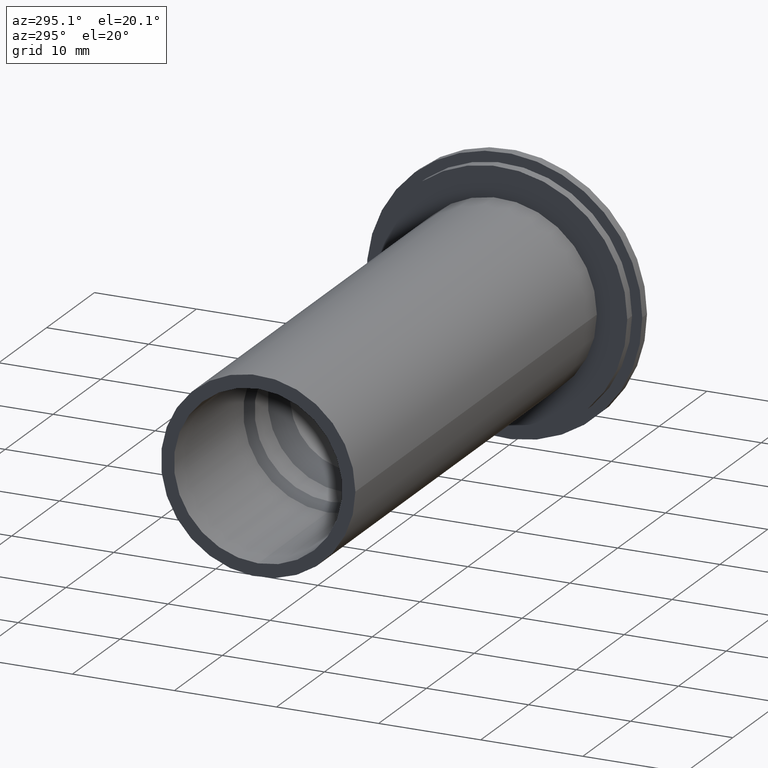
[diagram: clean part render]
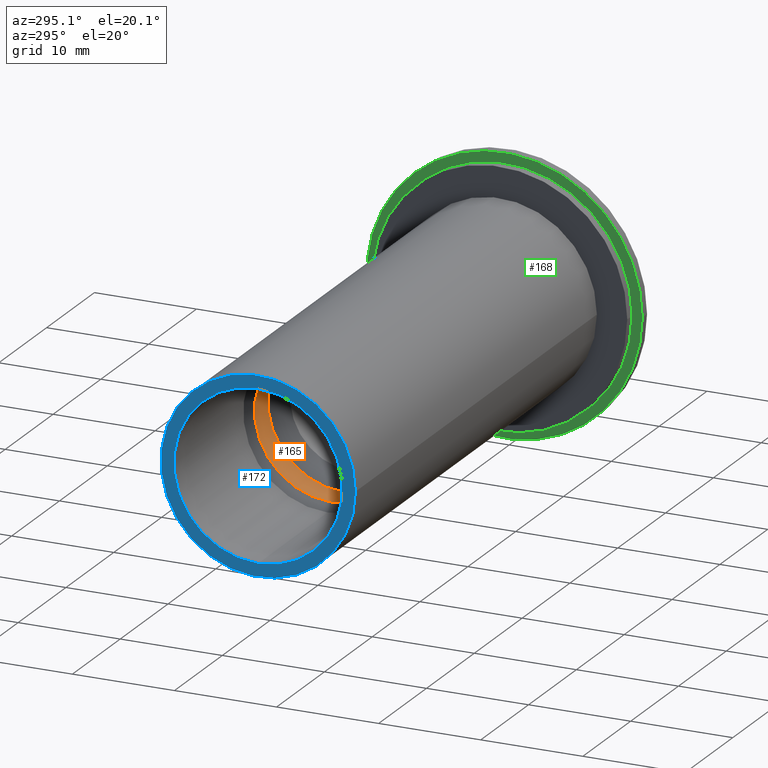
[diagram: same view with three faces highlighted in distinct colors, each labeled with its STEP entity id]
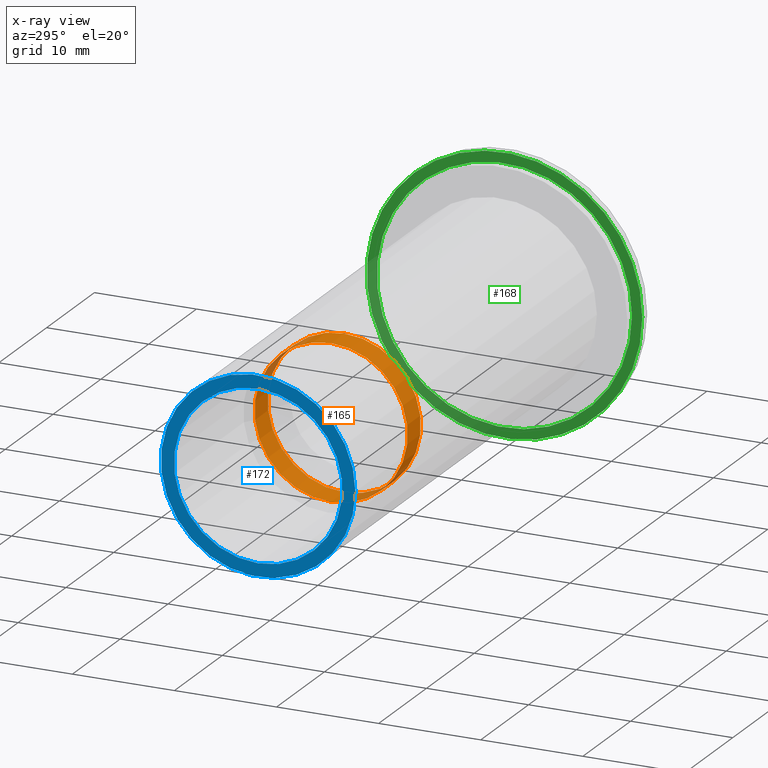
[diagram: x-ray of the same camera — body ghosted, the three highlighted faces saturated]
A machine part, auxiliary view with three faces highlighted in distinct colors.
The next image is the same camera in x-ray (body ghosted, the three faces saturated) — at least one of them is partly hidden behind the body in this view.
Their STEP definitions:

[orange] entity #165 — the highlighted cylindrical surface (bore or boss wall) has radius 7.5 mm, axis along (-1, 0, 0).
#23=CYLINDRICAL_SURFACE('',#203,7.5);
#30=FACE_OUTER_BOUND('',#42,.T.);
#42=EDGE_LOOP('',(#125,#126,#127,#128));
#58=LINE('',#296,#66);
#66=VECTOR('',#239,7.5);
#73=CIRCLE('',#200,7.5);
#76=CIRCLE('',#204,7.5);
#86=VERTEX_POINT('',#286);
#89=VERTEX_POINT('',#294);
#99=EDGE_CURVE('',#86,#86,#73,.T.);
#103=EDGE_CURVE('',#89,#89,#76,.T.);
#104=EDGE_CURVE('',#89,#86,#58,.T.);
#125=ORIENTED_EDGE('',*,*,#103,.F.);
#126=ORIENTED_EDGE('',*,*,#104,.T.);
#127=ORIENTED_EDGE('',*,*,#99,.F.);
#128=ORIENTED_EDGE('',*,*,#104,.F.);
#165=ADVANCED_FACE('',(#30),#23,.F.);
#200=AXIS2_PLACEMENT_3D('',#287,#228,#229);
#203=AXIS2_PLACEMENT_3D('',#293,#235,#236);
#204=AXIS2_PLACEMENT_3D('',#295,#237,#238);
#228=DIRECTION('center_axis',(-1.,0.,0.));
#229=DIRECTION('ref_axis',(0.,0.,1.));
#235=DIRECTION('center_axis',(-1.,0.,0.));
#236=DIRECTION('ref_axis',(0.,0.,1.));
#237=DIRECTION('center_axis',(1.,0.,0.));
#238=DIRECTION('ref_axis',(0.,0.,1.));
#239=DIRECTION('',(1.,0.,0.));
#286=CARTESIAN_POINT('',(-34.5,-9.18485099360515E-16,-7.5));
#287=CARTESIAN_POINT('Origin',(-34.5,0.,0.));
#293=CARTESIAN_POINT('Origin',(-43.5,0.,0.));
#294=CARTESIAN_POINT('',(-37.25,9.18485099360515E-16,-7.5));
#295=CARTESIAN_POINT('Origin',(-37.25,0.,0.));
#296=CARTESIAN_POINT('',(-43.5,-9.18485099360515E-16,-7.5));

[blue] entity #172 — the highlighted planar face has unit normal (-1, 0, 0).
#17=FACE_BOUND('',#52,.T.);
#21=PLANE('',#217);
#37=FACE_OUTER_BOUND('',#51,.T.);
#51=EDGE_LOOP('',(#150));
#52=EDGE_LOOP('',(#151));
#78=CIRCLE('',#208,8.25);
#83=CIRCLE('',#218,9.525);
#91=VERTEX_POINT('',#302);
#96=VERTEX_POINT('',#320);
#107=EDGE_CURVE('',#91,#91,#78,.T.);
#115=EDGE_CURVE('',#96,#96,#83,.T.);
#150=ORIENTED_EDGE('',*,*,#115,.F.);
#151=ORIENTED_EDGE('',*,*,#107,.T.);
#172=ADVANCED_FACE('',(#37,#17),#21,.T.);
#208=AXIS2_PLACEMENT_3D('',#303,#247,#248);
#217=AXIS2_PLACEMENT_3D('',#319,#268,#269);
#218=AXIS2_PLACEMENT_3D('',#321,#270,#271);
#247=DIRECTION('center_axis',(1.,0.,0.));
#248=DIRECTION('ref_axis',(0.,0.,1.));
#268=DIRECTION('center_axis',(-1.,0.,0.));
#269=DIRECTION('ref_axis',(0.,0.,1.));
#270=DIRECTION('center_axis',(1.,0.,0.));
#271=DIRECTION('ref_axis',(0.,0.,-1.));
#302=CARTESIAN_POINT('',(-52.5,-1.01033360929657E-15,-8.25));
#303=CARTESIAN_POINT('Origin',(-52.5,0.,0.));
#319=CARTESIAN_POINT('Origin',(-52.5,9.525,0.));
#320=CARTESIAN_POINT('',(-52.5,-9.525,-1.16647607618785E-15));
#321=CARTESIAN_POINT('Origin',(-52.5,0.,0.));

[green] entity #168 — the highlighted planar face has unit normal (-1, 0, 0).
#15=FACE_BOUND('',#46,.T.);
#19=PLANE('',#209);
#33=FACE_OUTER_BOUND('',#45,.T.);
#45=EDGE_LOOP('',(#137));
#46=EDGE_LOOP('',(#138));
#79=CIRCLE('',#210,13.5);
#80=CIRCLE('',#211,12.5);
#92=VERTEX_POINT('',#306);
#93=VERTEX_POINT('',#308);
#109=EDGE_CURVE('',#92,#92,#79,.T.);
#110=EDGE_CURVE('',#93,#93,#80,.T.);
#137=ORIENTED_EDGE('',*,*,#109,.F.);
#138=ORIENTED_EDGE('',*,*,#110,.T.);
#168=ADVANCED_FACE('',(#33,#15),#19,.T.);
#209=AXIS2_PLACEMENT_3D('',#305,#250,#251);
#210=AXIS2_PLACEMENT_3D('',#307,#252,#253);
#211=AXIS2_PLACEMENT_3D('',#309,#254,#255);
#250=DIRECTION('center_axis',(-1.,0.,0.));
#251=DIRECTION('ref_axis',(0.,0.,1.));
#252=DIRECTION('center_axis',(1.,0.,0.));
#253=DIRECTION('ref_axis',(0.,0.,-1.));
#254=DIRECTION('center_axis',(1.,0.,0.));
#255=DIRECTION('ref_axis',(0.,0.,-1.));
#305=CARTESIAN_POINT('Origin',(-1.,13.5,0.));
#306=CARTESIAN_POINT('',(-1.,-13.5,-1.65327317884893E-15));
#307=CARTESIAN_POINT('Origin',(-1.,0.,0.));
#308=CARTESIAN_POINT('',(-1.,-12.5,-1.53080849893419E-15));
#309=CARTESIAN_POINT('Origin',(-1.,0.,0.));